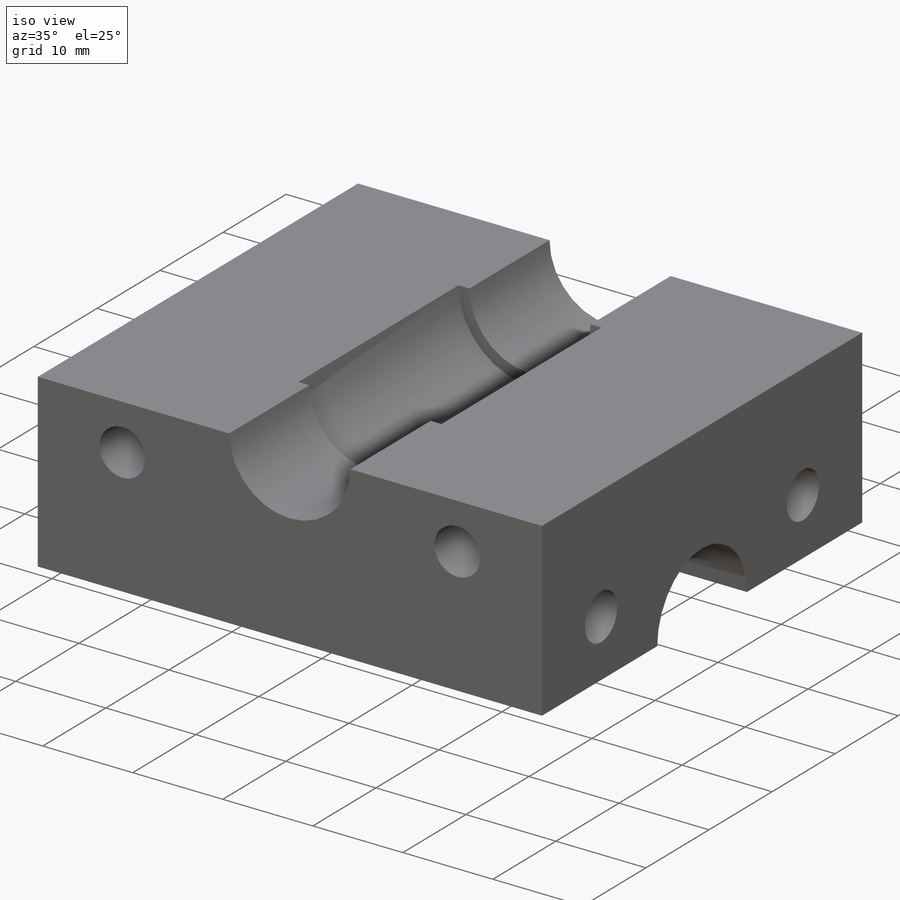
[diagram: iso view]
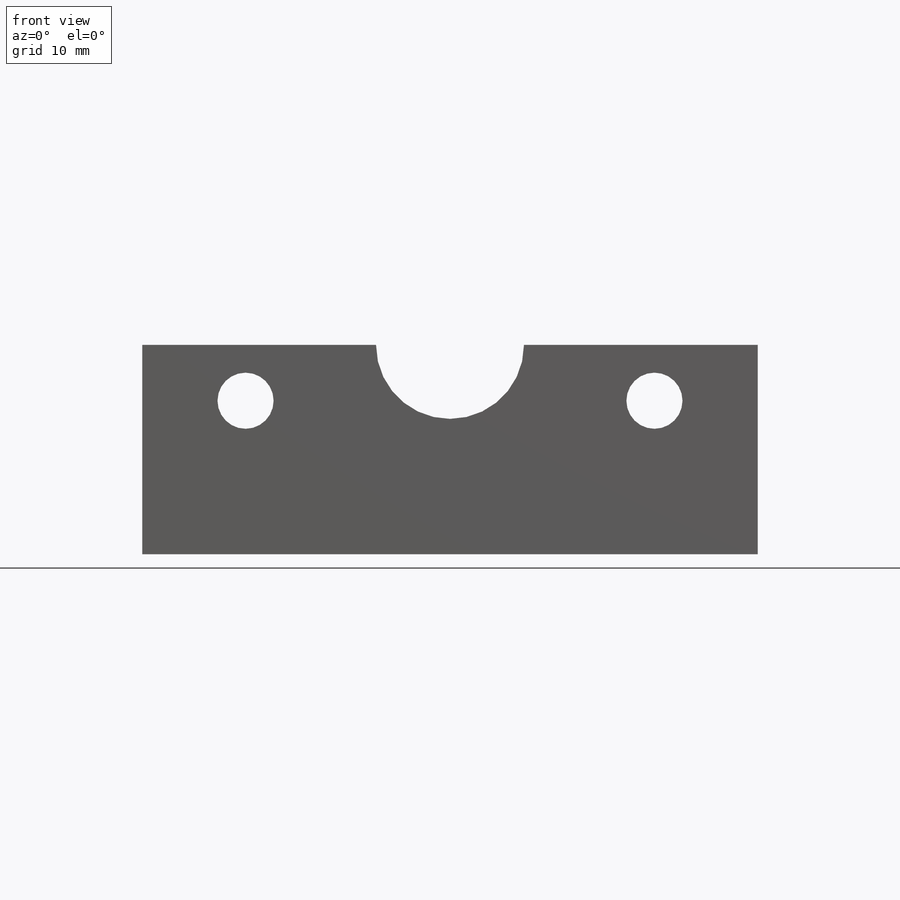
[diagram: front view]
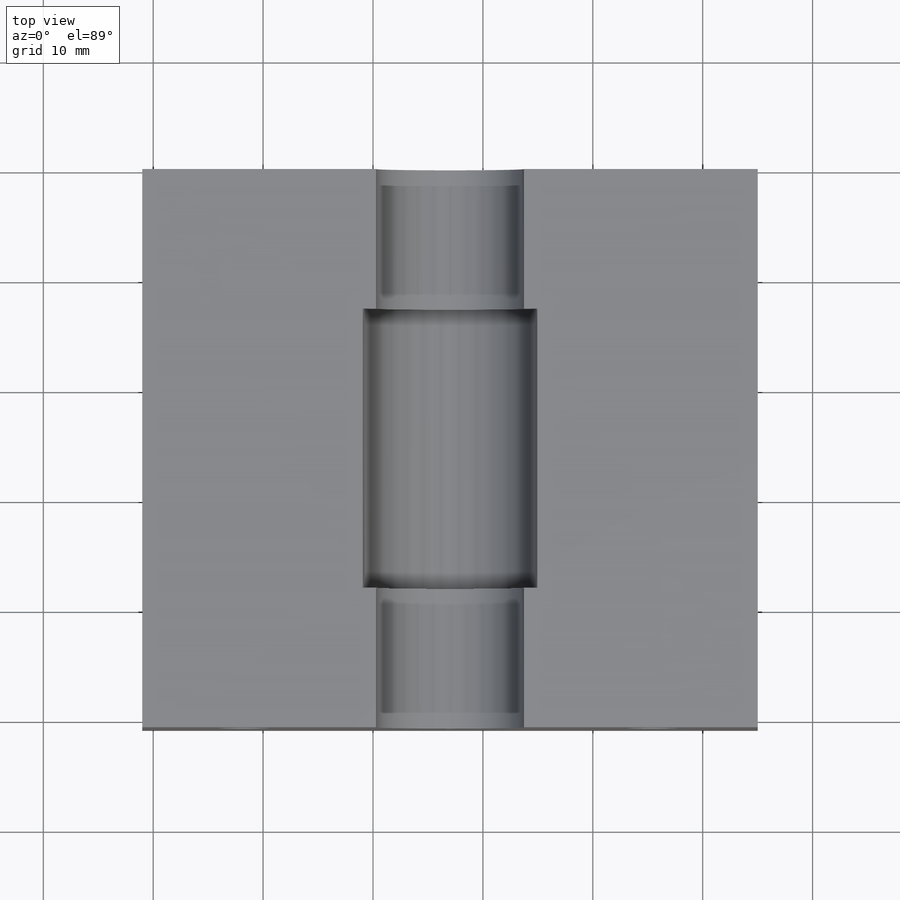
[diagram: top view]
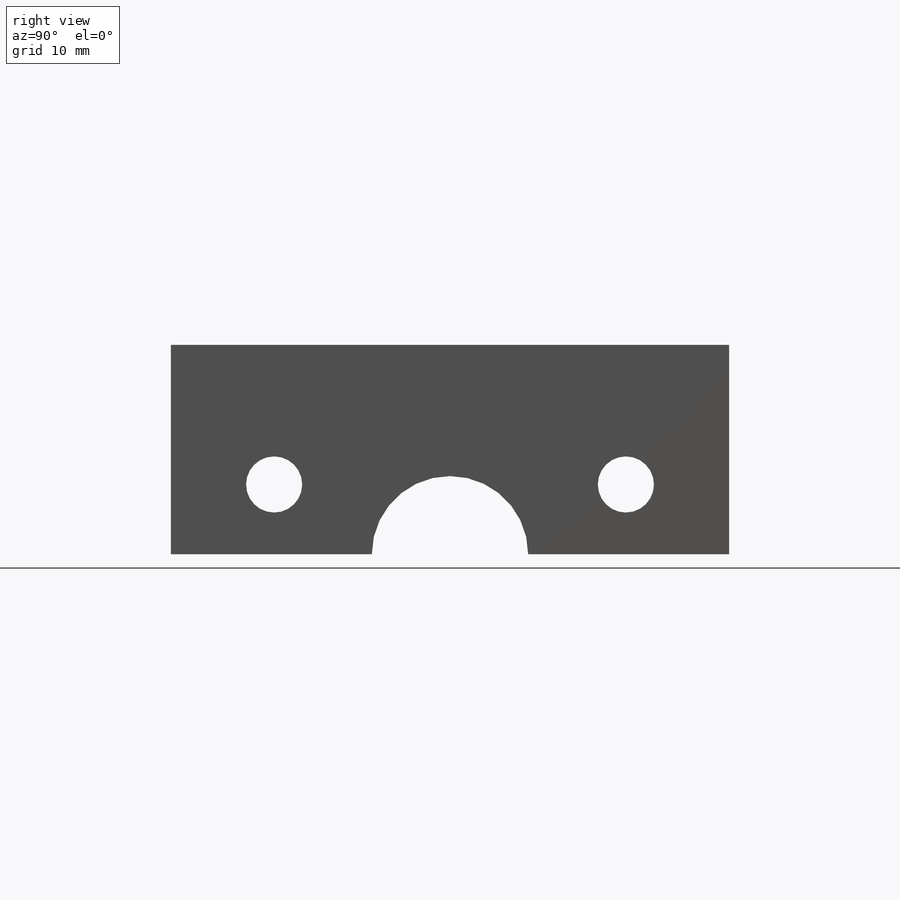
[diagram: right view]
SOLIDWORKS PART (.sldprt)
format: sldprt  version: not decoded by parser v0  size: 268,800 bytes
history: native  units: mm
features: sketch x5, cut_extrude x2, material x1, extrude x1, plane x1, hole x1 (+13 scaffold rows collapsed)
feature tree (24):
  scaffold x13  (default folders/planes/origin — collapsed)
  material  "ABS"
  sketch  "Sketch1"  dims[D3=6.731mm D1=19.05mm D2=56.0mm]
  extrude  "Boss-Extrude1"  Depth=50.8mm
  plane  "Plane1"
  sketch  "Sketch2"  dims[D1=15.875mm]
  cut_extrude  "Cut-Extrude1"  Depth=25.4mm
  hole  "#10 Clearance Hole1"  Diameter=5.1054mm Depth=56mm
  sketch  "3DSketch1"  dims[c1.D1=6.35mm c1.D2=9.398mm c1.D3=6.35mm c1.D4=6.35mm c2.D3=9.398mm c2.D4=9.398mm c2.D5=9.398mm c2.D6=13.97mm]
  sketch  "Sketch5"  dims[hole-wizard template sketch: 60 standard entries collapsed; hole parameters kept: c18.Thru Hole Depth=56.0mm]
  sketch  "Sketch9"  dims[D1=8.89mm]
  cut_extrude  "Cut-Extrude4"  [1 undecoded]
decode coverage: 8 of 9 modeling features carry decoded parameters
note: ~ marks probable driven/reference dimensions
note: 1 parameter value undecoded
note: suppression state not decoded; provenance and decode notes live in map.json
